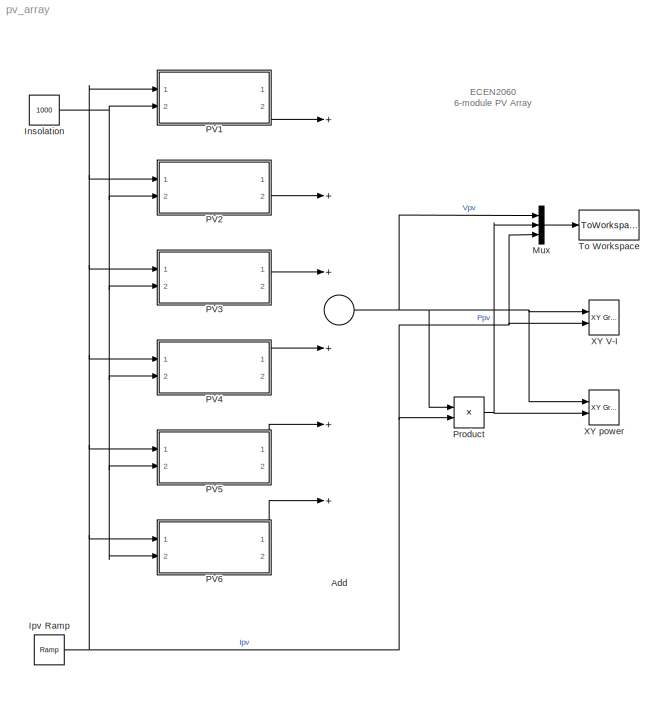
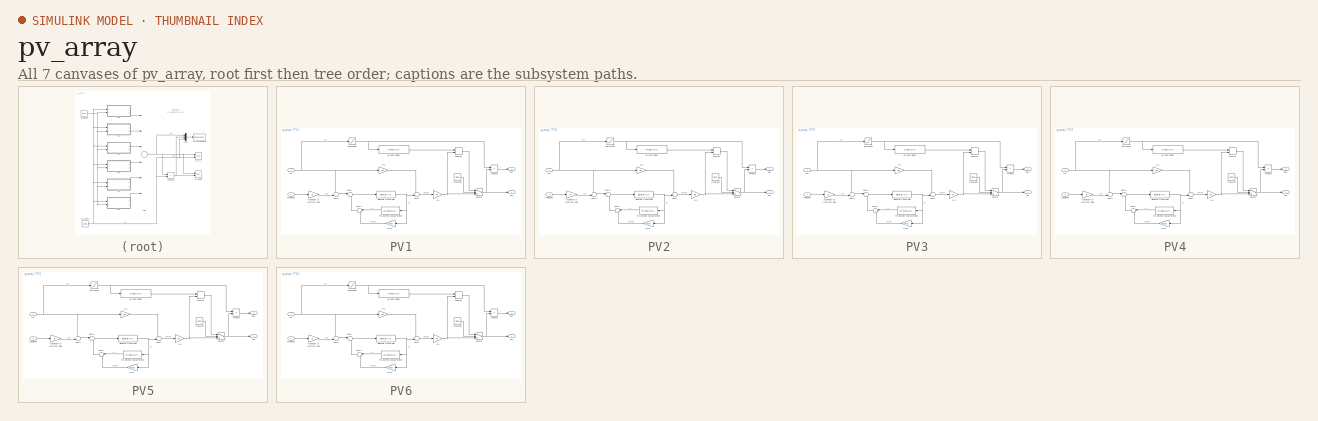
[diagram: thumbnail index - all 7 canvases of the model, root first then tree order]
MODEL pv_array
KIND model
BLOCK [Sum] Add
  InputSameDT = off
  Inputs = ++++++
  OutDataTypeMode = Inherit via internal rule
  OutScaling = 2^-10
  Ports = [6, 1]
  SaturateOnIntegerOverflow = off
BLOCK [Constant] Insolation
  ConRadixGroup = Use specified scaling
  FramePeriod = inf
  OutDataType = sfix(16)
  OutDataTypeMode = Inherit from 'Constant value'
  OutScaling = 2^0
  SampleTime = inf
  SamplingMode = Sample based
  Value = 1000
  VectorParams1D = on
BLOCK [Reference] Ipv Ramp  REF=simulink/Sources/Ramp
  FunctionWithSeparateData = off
  Ports = [0, 1]
  RTWMemSecDataConstants = Inherit from model
  RTWMemSecDataInternal = Inherit from model
  RTWMemSecDataParameters = Inherit from model
  RTWMemSecFuncExecute = Inherit from model
  RTWMemSecFuncInitTerm = Inherit from model
  ShowPortLabels = on
  SourceBlock = simulink/Sources/Ramp
  SourceType = Ramp
  SystemSampleTime = -1
  VectorParams1D = on
  X0 = 0
  slope = 6
  start = 0
BLOCK [Mux] Mux
  DisplayOption = bar
  Inputs = 3
  Ports = [3, 1]
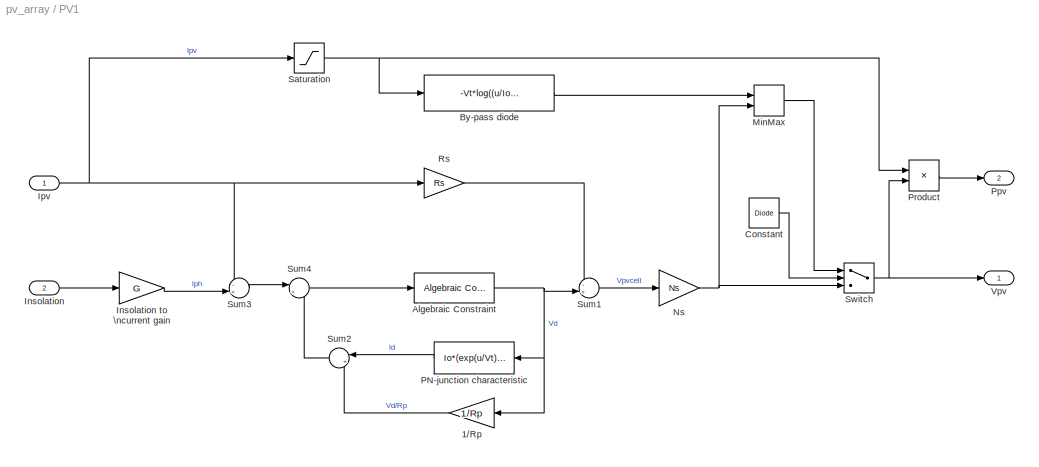
BLOCK [SubSystem] PV1
  FunctionWithSeparateData = off
  MaskCallbackString = ||||
  MaskDescription = PV module model based on module data-sheet parameters. This model has Ipv input, which is suitable for series connections. Limitations: no temperature dependance, static model
  MaskDisplay = plot([0.3 0.4],[0.4 0.8]);\nplot([0.4 0.5],[0.4 0.8]);\nplot([0.5 0.6],[0.4 0.8]);\nplot([0.6 0.7],[0.4 0.8]);\nplot([0.3 0.6],[0.4 0.4]);\nplot([0.325 0.625],[0.5 0.5]);\nplot([0.35 0.65],[0.6 0.6]);\nplot([0.375 0.675],[0.7 0.7]);\nplot([0.4 0.7],[0.8 0.8]);\ntext(0.5,0.9,'PV module (I)','horizontalAlignment', 'center');\n  <repeated x6 — deduplicated; at blocks: PV1, PV2, PV3, PV4, PV5, PV6>
  MaskEnableString = on,on,on,on,on
  MaskHideContents = off
  MaskIconFrame = on
  MaskIconOpaque = off
  MaskIconRotate = none
  MaskIconUnits = normalized
  MaskInitialization = % calculation of PV module parameters\n% limitation: constant temperature\nNs = round(Voc/0.61); % default number of cells in series\nVt = 26e-3; % thermal voltage\nG = Isc/1000; % irradiation to short-circuit current gain\nVmpc = Vr/Ns; % cell voltage at rated Pmax\nVocc = Voc/Ns; % cell open-circuit voltage\nRmpp = Vmpc/Ir; % cell load resistance at Pmax\n%\nRp = 100*Vocc/Isc; % initial value fo...<+575ch>  <repeated x6 — deduplicated; at blocks: PV1, PV2, PV3, PV4, PV5, PV6>
  MaskPromptString = Short-circuit current|Open-circuit voltage|Current at Pmax|Voltage at Pmax|By-pass diode?
  MaskStyleString = edit,edit,edit,edit,checkbox
  MaskTabNameString = ,,,,
  MaskToolTipString = on,on,on,on,on
  MaskTunableValueString = on,on,on,on,on
  MaskValueString = 5.45|22.2|4.95|17.2|on
  MaskVarAliasString = ,,,,
  MaskVariables = Isc=@1;Voc=@2;Ir=@3;Vr=@4;Diode=@5;
  MaskVisibilityString = on,on,on,on,on
  MinAlgLoopOccurrences = off
  Ports = [2, 2]
  RTWSystemCode = Auto
BLOCK [Gain] PV1/1//Rp
  Gain = 1/Rp
  OutDataTypeMode = Inherit via internal rule
  ParameterDataTypeMode = Inherit via internal rule
  SaturateOnIntegerOverflow = off
BLOCK [Reference] PV1/Algebraic Constraint  REF=simulink/Math\nOperations/Algebraic Constraint
  FunctionWithSeparateData = off
  Ports = [1, 1]
  RTWMemSecDataConstants = Inherit from model
  RTWMemSecDataInternal = Inherit from model
  RTWMemSecDataParameters = Inherit from model
  RTWMemSecFuncExecute = Inherit from model
  RTWMemSecFuncInitTerm = Inherit from model
  ShowPortLabels = on
  SourceBlock = simulink/Math\nOperations/Algebraic Constraint
  SourceType = Algebraic Constraint
  SystemSampleTime = -1
  z0 = 0
BLOCK [Fcn] PV1/By-pass diode
  Expr = -Vt*log((u/Io)+1)
BLOCK [Constant] PV1/Constant
  ConRadixGroup = Use specified scaling
  FramePeriod = inf
  OutDataType = sfix(16)
  OutDataTypeMode = Inherit from 'Constant value'
  OutScaling = 2^0
  SampleTime = inf
  SamplingMode = Sample based
  Value = Diode
  VectorParams1D = on
BLOCK [Inport] PV1/Insolation
  IconDisplay = Port number
  Port = 2
BLOCK [Gain] PV1/Insolation to \ncurrent gain
  Gain = G
  OutDataTypeMode = Inherit via internal rule
  ParameterDataTypeMode = Inherit via internal rule
  SaturateOnIntegerOverflow = off
BLOCK [Inport] PV1/Ipv
  IconDisplay = Port number
BLOCK [MinMax] PV1/MinMax
  Function = max
  InputSameDT = off
  Inputs = 2
  Ports = [2, 1]
  SaturateOnIntegerOverflow = off
BLOCK [Gain] PV1/Ns
  Gain = Ns
  OutDataTypeMode = Inherit via internal rule
  ParameterDataTypeMode = Inherit via internal rule
  SaturateOnIntegerOverflow = off
BLOCK [Fcn] PV1/PN-junction characteristic
  Expr = Io*(exp(u/Vt)-1)
BLOCK [Outport] PV1/Ppv
  BusOutputAsStruct = off
  IconDisplay = Port number
  Port = 2
BLOCK [Product] PV1/Product
  InputSameDT = off
  OutDataTypeMode = Inherit via internal rule
  Ports = [2, 1]
  SaturateOnIntegerOverflow = off
BLOCK [Gain] PV1/Rs
  Gain = Rs
  OutDataTypeMode = Inherit via internal rule
  ParameterDataTypeMode = Inherit via internal rule
  SaturateOnIntegerOverflow = off
BLOCK [Saturate] PV1/Saturation
  LowerLimit = 0
  UpperLimit = inf
BLOCK [Sum] PV1/Sum1
  IconShape = round
  InputSameDT = off
  Inputs = -+|
  OutDataTypeMode = Inherit via internal rule
  Ports = [2, 1]
  SaturateOnIntegerOverflow = off
BLOCK [Sum] PV1/Sum2
  IconShape = round
  InputSameDT = off
  Inputs = |++
  OutDataTypeMode = Inherit via internal rule
  Ports = [2, 1]
  SaturateOnIntegerOverflow = off
BLOCK [Sum] PV1/Sum3
  IconShape = round
  InputSameDT = off
  Inputs = -+|
  OutDataTypeMode = Inherit via internal rule
  Ports = [2, 1]
  SaturateOnIntegerOverflow = off
BLOCK [Sum] PV1/Sum4
  IconShape = round
  InputSameDT = off
  Inputs = |+-
  OutDataTypeMode = Inherit via internal rule
  Ports = [2, 1]
  SaturateOnIntegerOverflow = off
BLOCK [Switch] PV1/Switch
  Criteria = u2 > Threshold
  InputSameDT = off
  SaturateOnIntegerOverflow = off
BLOCK [Outport] PV1/Vpv
  BusOutputAsStruct = off
  IconDisplay = Port number
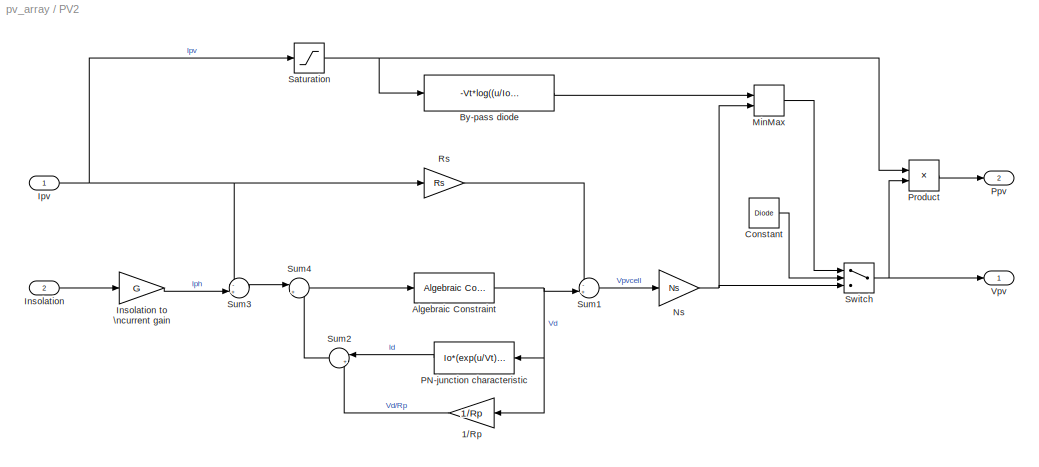
BLOCK [SubSystem] PV2
  FunctionWithSeparateData = off
  MaskCallbackString = ||||
  MaskDescription = PV module model based on module data-sheet parameters. This model has Ipv input, which is suitable for series connections. Limitations: no temperature dependance, static model
  MaskEnableString = on,on,on,on,on
  MaskHideContents = off
  MaskIconFrame = on
  MaskIconOpaque = off
  MaskIconRotate = none
  MaskIconUnits = normalized
  MaskPromptString = Short-circuit current|Open-circuit voltage|Current at Pmax|Voltage at Pmax|By-pass diode?
  MaskStyleString = edit,edit,edit,edit,checkbox
  MaskTabNameString = ,,,,
  MaskToolTipString = on,on,on,on,on
  MaskTunableValueString = on,on,on,on,on
  MaskValueString = 5.45|22.2|4.95|17.2|on
  MaskVarAliasString = ,,,,
  MaskVariables = Isc=@1;Voc=@2;Ir=@3;Vr=@4;Diode=@5;
  MaskVisibilityString = on,on,on,on,on
  MinAlgLoopOccurrences = off
  Ports = [2, 2]
  RTWSystemCode = Auto
BLOCK [Gain] PV2/1//Rp
  Gain = 1/Rp
  OutDataTypeMode = Inherit via internal rule
  ParameterDataTypeMode = Inherit via internal rule
  SaturateOnIntegerOverflow = off
BLOCK [Reference] PV2/Algebraic Constraint  REF=simulink/Math\nOperations/Algebraic Constraint
  FunctionWithSeparateData = off
  Ports = [1, 1]
  RTWMemSecDataConstants = Inherit from model
  RTWMemSecDataInternal = Inherit from model
  RTWMemSecDataParameters = Inherit from model
  RTWMemSecFuncExecute = Inherit from model
  RTWMemSecFuncInitTerm = Inherit from model
  ShowPortLabels = on
  SourceBlock = simulink/Math\nOperations/Algebraic Constraint
  SourceType = Algebraic Constraint
  SystemSampleTime = -1
  z0 = 0
BLOCK [Fcn] PV2/By-pass diode
  Expr = -Vt*log((u/Io)+1)
BLOCK [Constant] PV2/Constant
  ConRadixGroup = Use specified scaling
  FramePeriod = inf
  OutDataType = sfix(16)
  OutDataTypeMode = Inherit from 'Constant value'
  OutScaling = 2^0
  SampleTime = inf
  SamplingMode = Sample based
  Value = Diode
  VectorParams1D = on
BLOCK [Inport] PV2/Insolation
  IconDisplay = Port number
  Port = 2
BLOCK [Gain] PV2/Insolation to \ncurrent gain
  Gain = G
  OutDataTypeMode = Inherit via internal rule
  ParameterDataTypeMode = Inherit via internal rule
  SaturateOnIntegerOverflow = off
BLOCK [Inport] PV2/Ipv
  IconDisplay = Port number
BLOCK [MinMax] PV2/MinMax
  Function = max
  InputSameDT = off
  Inputs = 2
  Ports = [2, 1]
  SaturateOnIntegerOverflow = off
BLOCK [Gain] PV2/Ns
  Gain = Ns
  OutDataTypeMode = Inherit via internal rule
  ParameterDataTypeMode = Inherit via internal rule
  SaturateOnIntegerOverflow = off
BLOCK [Fcn] PV2/PN-junction characteristic
  Expr = Io*(exp(u/Vt)-1)
BLOCK [Outport] PV2/Ppv
  BusOutputAsStruct = off
  IconDisplay = Port number
  Port = 2
BLOCK [Product] PV2/Product
  InputSameDT = off
  OutDataTypeMode = Inherit via internal rule
  Ports = [2, 1]
  SaturateOnIntegerOverflow = off
BLOCK [Gain] PV2/Rs
  Gain = Rs
  OutDataTypeMode = Inherit via internal rule
  ParameterDataTypeMode = Inherit via internal rule
  SaturateOnIntegerOverflow = off
BLOCK [Saturate] PV2/Saturation
  LowerLimit = 0
  UpperLimit = inf
BLOCK [Sum] PV2/Sum1
  IconShape = round
  InputSameDT = off
  Inputs = -+|
  OutDataTypeMode = Inherit via internal rule
  Ports = [2, 1]
  SaturateOnIntegerOverflow = off
BLOCK [Sum] PV2/Sum2
  IconShape = round
  InputSameDT = off
  Inputs = |++
  OutDataTypeMode = Inherit via internal rule
  Ports = [2, 1]
  SaturateOnIntegerOverflow = off
BLOCK [Sum] PV2/Sum3
  IconShape = round
  InputSameDT = off
  Inputs = -+|
  OutDataTypeMode = Inherit via internal rule
  Ports = [2, 1]
  SaturateOnIntegerOverflow = off
BLOCK [Sum] PV2/Sum4
  IconShape = round
  InputSameDT = off
  Inputs = |+-
  OutDataTypeMode = Inherit via internal rule
  Ports = [2, 1]
  SaturateOnIntegerOverflow = off
BLOCK [Switch] PV2/Switch
  Criteria = u2 > Threshold
  InputSameDT = off
  SaturateOnIntegerOverflow = off
BLOCK [Outport] PV2/Vpv
  BusOutputAsStruct = off
  IconDisplay = Port number
BLOCK [SubSystem] PV3
  FunctionWithSeparateData = off
  MaskCallbackString = ||||
  MaskDescription = PV module model based on module data-sheet parameters. This model has Ipv input, which is suitable for series connections. Limitations: no temperature dependance, static model
  MaskEnableString = on,on,on,on,on
  MaskHideContents = off
  MaskIconFrame = on
  MaskIconOpaque = off
  MaskIconRotate = none
  MaskIconUnits = normalized
  MaskPromptString = Short-circuit current|Open-circuit voltage|Current at Pmax|Voltage at Pmax|By-pass diode?
  MaskStyleString = edit,edit,edit,edit,checkbox
  MaskTabNameString = ,,,,
  MaskToolTipString = on,on,on,on,on
  MaskTunableValueString = on,on,on,on,on
  MaskValueString = 5.45|22.2|4.95|17.2|on
  MaskVarAliasString = ,,,,
  MaskVariables = Isc=@1;Voc=@2;Ir=@3;Vr=@4;Diode=@5;
  MaskVisibilityString = on,on,on,on,on
  MinAlgLoopOccurrences = off
  Ports = [2, 2]
  RTWSystemCode = Auto
BLOCK [Gain] PV3/1//Rp
  Gain = 1/Rp
  OutDataTypeMode = Inherit via internal rule
  ParameterDataTypeMode = Inherit via internal rule
  SaturateOnIntegerOverflow = off
BLOCK [Reference] PV3/Algebraic Constraint  REF=simulink/Math\nOperations/Algebraic Constraint
  FunctionWithSeparateData = off
  Ports = [1, 1]
  RTWMemSecDataConstants = Inherit from model
  RTWMemSecDataInternal = Inherit from model
  RTWMemSecDataParameters = Inherit from model
  RTWMemSecFuncExecute = Inherit from model
  RTWMemSecFuncInitTerm = Inherit from model
  ShowPortLabels = on
  SourceBlock = simulink/Math\nOperations/Algebraic Constraint
  SourceType = Algebraic Constraint
  SystemSampleTime = -1
  z0 = 0
BLOCK [Fcn] PV3/By-pass diode
  Expr = -Vt*log((u/Io)+1)
BLOCK [Constant] PV3/Constant
  ConRadixGroup = Use specified scaling
  FramePeriod = inf
  OutDataType = sfix(16)
  OutDataTypeMode = Inherit from 'Constant value'
  OutScaling = 2^0
  SampleTime = inf
  SamplingMode = Sample based
  Value = Diode
  VectorParams1D = on
BLOCK [Inport] PV3/Insolation
  IconDisplay = Port number
  Port = 2
BLOCK [Gain] PV3/Insolation to \ncurrent gain
  Gain = G
  OutDataTypeMode = Inherit via internal rule
  ParameterDataTypeMode = Inherit via internal rule
  SaturateOnIntegerOverflow = off
BLOCK [Inport] PV3/Ipv
  IconDisplay = Port number
BLOCK [MinMax] PV3/MinMax
  Function = max
  InputSameDT = off
  Inputs = 2
  Ports = [2, 1]
  SaturateOnIntegerOverflow = off
BLOCK [Gain] PV3/Ns
  Gain = Ns
  OutDataTypeMode = Inherit via internal rule
  ParameterDataTypeMode = Inherit via internal rule
  SaturateOnIntegerOverflow = off
BLOCK [Fcn] PV3/PN-junction characteristic
  Expr = Io*(exp(u/Vt)-1)
BLOCK [Outport] PV3/Ppv
  BusOutputAsStruct = off
  IconDisplay = Port number
  Port = 2
BLOCK [Product] PV3/Product
  InputSameDT = off
  OutDataTypeMode = Inherit via internal rule
  Ports = [2, 1]
  SaturateOnIntegerOverflow = off
BLOCK [Gain] PV3/Rs
  Gain = Rs
  OutDataTypeMode = Inherit via internal rule
  ParameterDataTypeMode = Inherit via internal rule
  SaturateOnIntegerOverflow = off
BLOCK [Saturate] PV3/Saturation
  LowerLimit = 0
  UpperLimit = inf
BLOCK [Sum] PV3/Sum1
  IconShape = round
  InputSameDT = off
  Inputs = -+|
  OutDataTypeMode = Inherit via internal rule
  Ports = [2, 1]
  SaturateOnIntegerOverflow = off
BLOCK [Sum] PV3/Sum2
  IconShape = round
  InputSameDT = off
  Inputs = |++
  OutDataTypeMode = Inherit via internal rule
  Ports = [2, 1]
  SaturateOnIntegerOverflow = off
BLOCK [Sum] PV3/Sum3
  IconShape = round
  InputSameDT = off
  Inputs = -+|
  OutDataTypeMode = Inherit via internal rule
  Ports = [2, 1]
  SaturateOnIntegerOverflow = off
BLOCK [Sum] PV3/Sum4
  IconShape = round
  InputSameDT = off
  Inputs = |+-
  OutDataTypeMode = Inherit via internal rule
  Ports = [2, 1]
  SaturateOnIntegerOverflow = off
BLOCK [Switch] PV3/Switch
  Criteria = u2 > Threshold
  InputSameDT = off
  SaturateOnIntegerOverflow = off
BLOCK [Outport] PV3/Vpv
  BusOutputAsStruct = off
  IconDisplay = Port number
BLOCK [SubSystem] PV4
  FunctionWithSeparateData = off
  MaskCallbackString = ||||
  MaskDescription = PV module model based on module data-sheet parameters. This model has Ipv input, which is suitable for series connections. Limitations: no temperature dependance, static model
  MaskEnableString = on,on,on,on,on
  MaskHideContents = off
  MaskIconFrame = on
  MaskIconOpaque = off
  MaskIconRotate = none
  MaskIconUnits = normalized
  MaskPromptString = Short-circuit current|Open-circuit voltage|Current at Pmax|Voltage at Pmax|By-pass diode?
  MaskStyleString = edit,edit,edit,edit,checkbox
  MaskTabNameString = ,,,,
  MaskToolTipString = on,on,on,on,on
  MaskTunableValueString = on,on,on,on,on
  MaskValueString = 5.45|22.2|4.95|17.2|on
  MaskVarAliasString = ,,,,
  MaskVariables = Isc=@1;Voc=@2;Ir=@3;Vr=@4;Diode=@5;
  MaskVisibilityString = on,on,on,on,on
  MinAlgLoopOccurrences = off
  Ports = [2, 2]
  RTWSystemCode = Auto
BLOCK [Gain] PV4/1//Rp
  Gain = 1/Rp
  OutDataTypeMode = Inherit via internal rule
  ParameterDataTypeMode = Inherit via internal rule
  SaturateOnIntegerOverflow = off
BLOCK [Reference] PV4/Algebraic Constraint  REF=simulink/Math\nOperations/Algebraic Constraint
  FunctionWithSeparateData = off
  Ports = [1, 1]
  RTWMemSecDataConstants = Inherit from model
  RTWMemSecDataInternal = Inherit from model
  RTWMemSecDataParameters = Inherit from model
  RTWMemSecFuncExecute = Inherit from model
  RTWMemSecFuncInitTerm = Inherit from model
  ShowPortLabels = on
  SourceBlock = simulink/Math\nOperations/Algebraic Constraint
  SourceType = Algebraic Constraint
  SystemSampleTime = -1
  z0 = 0
BLOCK [Fcn] PV4/By-pass diode
  Expr = -Vt*log((u/Io)+1)
BLOCK [Constant] PV4/Constant
  ConRadixGroup = Use specified scaling
  FramePeriod = inf
  OutDataType = sfix(16)
  OutDataTypeMode = Inherit from 'Constant value'
  OutScaling = 2^0
  SampleTime = inf
  SamplingMode = Sample based
  Value = Diode
  VectorParams1D = on
BLOCK [Inport] PV4/Insolation
  IconDisplay = Port number
  Port = 2
BLOCK [Gain] PV4/Insolation to \ncurrent gain
  Gain = G
  OutDataTypeMode = Inherit via internal rule
  ParameterDataTypeMode = Inherit via internal rule
  SaturateOnIntegerOverflow = off
BLOCK [Inport] PV4/Ipv
  IconDisplay = Port number
BLOCK [MinMax] PV4/MinMax
  Function = max
  InputSameDT = off
  Inputs = 2
  Ports = [2, 1]
  SaturateOnIntegerOverflow = off
BLOCK [Gain] PV4/Ns
  Gain = Ns
  OutDataTypeMode = Inherit via internal rule
  ParameterDataTypeMode = Inherit via internal rule
  SaturateOnIntegerOverflow = off
BLOCK [Fcn] PV4/PN-junction characteristic
  Expr = Io*(exp(u/Vt)-1)
BLOCK [Outport] PV4/Ppv
  BusOutputAsStruct = off
  IconDisplay = Port number
  Port = 2
BLOCK [Product] PV4/Product
  InputSameDT = off
  OutDataTypeMode = Inherit via internal rule
  Ports = [2, 1]
  SaturateOnIntegerOverflow = off
BLOCK [Gain] PV4/Rs
  Gain = Rs
  OutDataTypeMode = Inherit via internal rule
  ParameterDataTypeMode = Inherit via internal rule
  SaturateOnIntegerOverflow = off
BLOCK [Saturate] PV4/Saturation
  LowerLimit = 0
  UpperLimit = inf
BLOCK [Sum] PV4/Sum1
  IconShape = round
  InputSameDT = off
  Inputs = -+|
  OutDataTypeMode = Inherit via internal rule
  Ports = [2, 1]
  SaturateOnIntegerOverflow = off
BLOCK [Sum] PV4/Sum2
  IconShape = round
  InputSameDT = off
  Inputs = |++
  OutDataTypeMode = Inherit via internal rule
  Ports = [2, 1]
  SaturateOnIntegerOverflow = off
BLOCK [Sum] PV4/Sum3
  IconShape = round
  InputSameDT = off
  Inputs = -+|
  OutDataTypeMode = Inherit via internal rule
  Ports = [2, 1]
  SaturateOnIntegerOverflow = off
BLOCK [Sum] PV4/Sum4
  IconShape = round
  InputSameDT = off
  Inputs = |+-
  OutDataTypeMode = Inherit via internal rule
  Ports = [2, 1]
  SaturateOnIntegerOverflow = off
BLOCK [Switch] PV4/Switch
  Criteria = u2 > Threshold
  InputSameDT = off
  SaturateOnIntegerOverflow = off
BLOCK [Outport] PV4/Vpv
  BusOutputAsStruct = off
  IconDisplay = Port number
BLOCK [SubSystem] PV5
  FunctionWithSeparateData = off
  MaskCallbackString = ||||
  MaskDescription = PV module model based on module data-sheet parameters. This model has Ipv input, which is suitable for series connections. Limitations: no temperature dependance, static model
  MaskEnableString = on,on,on,on,on
  MaskHideContents = off
  MaskIconFrame = on
  MaskIconOpaque = off
  MaskIconRotate = none
  MaskIconUnits = normalized
  MaskPromptString = Short-circuit current|Open-circuit voltage|Current at Pmax|Voltage at Pmax|By-pass diode?
  MaskStyleString = edit,edit,edit,edit,checkbox
  MaskTabNameString = ,,,,
  MaskToolTipString = on,on,on,on,on
  MaskTunableValueString = on,on,on,on,on
  MaskValueString = 5.45|22.2|4.95|17.2|on
  MaskVarAliasString = ,,,,
  MaskVariables = Isc=@1;Voc=@2;Ir=@3;Vr=@4;Diode=@5;
  MaskVisibilityString = on,on,on,on,on
  MinAlgLoopOccurrences = off
  Ports = [2, 2]
  RTWSystemCode = Auto
BLOCK [Gain] PV5/1//Rp
  Gain = 1/Rp
  OutDataTypeMode = Inherit via internal rule
  ParameterDataTypeMode = Inherit via internal rule
  SaturateOnIntegerOverflow = off
BLOCK [Reference] PV5/Algebraic Constraint  REF=simulink/Math\nOperations/Algebraic Constraint
  FunctionWithSeparateData = off
  Ports = [1, 1]
  RTWMemSecDataConstants = Inherit from model
  RTWMemSecDataInternal = Inherit from model
  RTWMemSecDataParameters = Inherit from model
  RTWMemSecFuncExecute = Inherit from model
  RTWMemSecFuncInitTerm = Inherit from model
  ShowPortLabels = on
  SourceBlock = simulink/Math\nOperations/Algebraic Constraint
  SourceType = Algebraic Constraint
  SystemSampleTime = -1
  z0 = 0
BLOCK [Fcn] PV5/By-pass diode
  Expr = -Vt*log((u/Io)+1)
BLOCK [Constant] PV5/Constant
  ConRadixGroup = Use specified scaling
  FramePeriod = inf
  OutDataType = sfix(16)
  OutDataTypeMode = Inherit from 'Constant value'
  OutScaling = 2^0
  SampleTime = inf
  SamplingMode = Sample based
  Value = Diode
  VectorParams1D = on
BLOCK [Inport] PV5/Insolation
  IconDisplay = Port number
  Port = 2
BLOCK [Gain] PV5/Insolation to \ncurrent gain
  Gain = G
  OutDataTypeMode = Inherit via internal rule
  ParameterDataTypeMode = Inherit via internal rule
  SaturateOnIntegerOverflow = off
BLOCK [Inport] PV5/Ipv
  IconDisplay = Port number
BLOCK [MinMax] PV5/MinMax
  Function = max
  InputSameDT = off
  Inputs = 2
  Ports = [2, 1]
  SaturateOnIntegerOverflow = off
BLOCK [Gain] PV5/Ns
  Gain = Ns
  OutDataTypeMode = Inherit via internal rule
  ParameterDataTypeMode = Inherit via internal rule
  SaturateOnIntegerOverflow = off
BLOCK [Fcn] PV5/PN-junction characteristic
  Expr = Io*(exp(u/Vt)-1)
BLOCK [Outport] PV5/Ppv
  BusOutputAsStruct = off
  IconDisplay = Port number
  Port = 2
BLOCK [Product] PV5/Product
  InputSameDT = off
  OutDataTypeMode = Inherit via internal rule
  Ports = [2, 1]
  SaturateOnIntegerOverflow = off
BLOCK [Gain] PV5/Rs
  Gain = Rs
  OutDataTypeMode = Inherit via internal rule
  ParameterDataTypeMode = Inherit via internal rule
  SaturateOnIntegerOverflow = off
BLOCK [Saturate] PV5/Saturation
  LowerLimit = 0
  UpperLimit = inf
BLOCK [Sum] PV5/Sum1
  IconShape = round
  InputSameDT = off
  Inputs = -+|
  OutDataTypeMode = Inherit via internal rule
  Ports = [2, 1]
  SaturateOnIntegerOverflow = off
BLOCK [Sum] PV5/Sum2
  IconShape = round
  InputSameDT = off
  Inputs = |++
  OutDataTypeMode = Inherit via internal rule
  Ports = [2, 1]
  SaturateOnIntegerOverflow = off
BLOCK [Sum] PV5/Sum3
  IconShape = round
  InputSameDT = off
  Inputs = -+|
  OutDataTypeMode = Inherit via internal rule
  Ports = [2, 1]
  SaturateOnIntegerOverflow = off
BLOCK [Sum] PV5/Sum4
  IconShape = round
  InputSameDT = off
  Inputs = |+-
  OutDataTypeMode = Inherit via internal rule
  Ports = [2, 1]
  SaturateOnIntegerOverflow = off
BLOCK [Switch] PV5/Switch
  Criteria = u2 > Threshold
  InputSameDT = off
  SaturateOnIntegerOverflow = off
BLOCK [Outport] PV5/Vpv
  BusOutputAsStruct = off
  IconDisplay = Port number
BLOCK [SubSystem] PV6
  FunctionWithSeparateData = off
  MaskCallbackString = ||||
  MaskDescription = PV module model based on module data-sheet parameters. This model has Ipv input, which is suitable for series connections. Limitations: no temperature dependance, static model
  MaskEnableString = on,on,on,on,on
  MaskHideContents = off
  MaskIconFrame = on
  MaskIconOpaque = off
  MaskIconRotate = none
  MaskIconUnits = normalized
  MaskPromptString = Short-circuit current|Open-circuit voltage|Current at Pmax|Voltage at Pmax|By-pass diode?
  MaskStyleString = edit,edit,edit,edit,checkbox
  MaskTabNameString = ,,,,
  MaskToolTipString = on,on,on,on,on
  MaskTunableValueString = on,on,on,on,on
  MaskValueString = 5.45|22.2|4.95|17.2|on
  MaskVarAliasString = ,,,,
  MaskVariables = Isc=@1;Voc=@2;Ir=@3;Vr=@4;Diode=@5;
  MaskVisibilityString = on,on,on,on,on
  MinAlgLoopOccurrences = off
  Ports = [2, 2]
  RTWSystemCode = Auto
BLOCK [Gain] PV6/1//Rp
  Gain = 1/Rp
  OutDataTypeMode = Inherit via internal rule
  ParameterDataTypeMode = Inherit via internal rule
  SaturateOnIntegerOverflow = off
BLOCK [Reference] PV6/Algebraic Constraint  REF=simulink/Math\nOperations/Algebraic Constraint
  FunctionWithSeparateData = off
  Ports = [1, 1]
  RTWMemSecDataConstants = Inherit from model
  RTWMemSecDataInternal = Inherit from model
  RTWMemSecDataParameters = Inherit from model
  RTWMemSecFuncExecute = Inherit from model
  RTWMemSecFuncInitTerm = Inherit from model
  ShowPortLabels = on
  SourceBlock = simulink/Math\nOperations/Algebraic Constraint
  SourceType = Algebraic Constraint
  SystemSampleTime = -1
  z0 = 0
BLOCK [Fcn] PV6/By-pass diode
  Expr = -Vt*log((u/Io)+1)
BLOCK [Constant] PV6/Constant
  ConRadixGroup = Use specified scaling
  FramePeriod = inf
  OutDataType = sfix(16)
  OutDataTypeMode = Inherit from 'Constant value'
  OutScaling = 2^0
  SampleTime = inf
  SamplingMode = Sample based
  Value = Diode
  VectorParams1D = on
BLOCK [Inport] PV6/Insolation
  IconDisplay = Port number
  Port = 2
BLOCK [Gain] PV6/Insolation to \ncurrent gain
  Gain = G
  OutDataTypeMode = Inherit via internal rule
  ParameterDataTypeMode = Inherit via internal rule
  SaturateOnIntegerOverflow = off
BLOCK [Inport] PV6/Ipv
  IconDisplay = Port number
BLOCK [MinMax] PV6/MinMax
  Function = max
  InputSameDT = off
  Inputs = 2
  Ports = [2, 1]
  SaturateOnIntegerOverflow = off
BLOCK [Gain] PV6/Ns
  Gain = Ns
  OutDataTypeMode = Inherit via internal rule
  ParameterDataTypeMode = Inherit via internal rule
  SaturateOnIntegerOverflow = off
BLOCK [Fcn] PV6/PN-junction characteristic
  Expr = Io*(exp(u/Vt)-1)
BLOCK [Outport] PV6/Ppv
  BusOutputAsStruct = off
  IconDisplay = Port number
  Port = 2
BLOCK [Product] PV6/Product
  InputSameDT = off
  OutDataTypeMode = Inherit via internal rule
  Ports = [2, 1]
  SaturateOnIntegerOverflow = off
BLOCK [Gain] PV6/Rs
  Gain = Rs
  OutDataTypeMode = Inherit via internal rule
  ParameterDataTypeMode = Inherit via internal rule
  SaturateOnIntegerOverflow = off
BLOCK [Saturate] PV6/Saturation
  LowerLimit = 0
  UpperLimit = inf
BLOCK [Sum] PV6/Sum1
  IconShape = round
  InputSameDT = off
  Inputs = -+|
  OutDataTypeMode = Inherit via internal rule
  Ports = [2, 1]
  SaturateOnIntegerOverflow = off
BLOCK [Sum] PV6/Sum2
  IconShape = round
  InputSameDT = off
  Inputs = |++
  OutDataTypeMode = Inherit via internal rule
  Ports = [2, 1]
  SaturateOnIntegerOverflow = off
BLOCK [Sum] PV6/Sum3
  IconShape = round
  InputSameDT = off
  Inputs = -+|
  OutDataTypeMode = Inherit via internal rule
  Ports = [2, 1]
  SaturateOnIntegerOverflow = off
BLOCK [Sum] PV6/Sum4
  IconShape = round
  InputSameDT = off
  Inputs = |+-
  OutDataTypeMode = Inherit via internal rule
  Ports = [2, 1]
  SaturateOnIntegerOverflow = off
BLOCK [Switch] PV6/Switch
  Criteria = u2 > Threshold
  InputSameDT = off
  SaturateOnIntegerOverflow = off
BLOCK [Outport] PV6/Vpv
  BusOutputAsStruct = off
  IconDisplay = Port number
BLOCK [Product] Product
  InputSameDT = off
  OutDataTypeMode = Inherit via internal rule
  Ports = [2, 1]
  SaturateOnIntegerOverflow = off
BLOCK [ToWorkspace] To Workspace
  MaxDataPoints = inf
  SampleTime = -1
  SaveFormat = Structure With Time
  VariableName = PV
BLOCK [Reference] XY V-I  REF=simulink/Sinks/XY Graph
  FunctionWithSeparateData = off
  Ports = [2]
  RTWMemSecDataConstants = Inherit from model
  RTWMemSecDataInternal = Inherit from model
  RTWMemSecDataParameters = Inherit from model
  RTWMemSecFuncExecute = Inherit from model
  RTWMemSecFuncInitTerm = Inherit from model
  ShowPortLabels = on
  SourceBlock = simulink/Sinks/XY Graph
  SourceType = XY scope.
  SystemSampleTime = -1
  st = -1
  xmax = 150
  xmin = 0
  ymax = 6
  ymin = 0
BLOCK [Reference] XY power  REF=simulink/Sinks/XY Graph
  FunctionWithSeparateData = off
  Ports = [2]
  RTWMemSecDataConstants = Inherit from model
  RTWMemSecDataInternal = Inherit from model
  RTWMemSecDataParameters = Inherit from model
  RTWMemSecFuncExecute = Inherit from model
  RTWMemSecFuncInitTerm = Inherit from model
  ShowPortLabels = on
  SourceBlock = simulink/Sinks/XY Graph
  SourceType = XY scope.
  SystemSampleTime = -1
  st = -1
  xmax = 150
  xmin = 0
  ymax = 600
  ymin = 0
ANNOTATION (root): ECEN2060\n6-module PV Array
NET Add:1 -> Mux:1, Product:1, XY V-I:1, XY power:1
NET Insolation:1 -> PV1:2, PV2:2, PV3:2, PV4:2, PV5:2, PV6:2
NET Ipv Ramp:1 -> Mux:3, PV1:1, PV2:1, PV3:1, PV4:1, PV5:1, PV6:1, Product:2, XY V-I:2
LINE Mux:1 -> To Workspace:1
LINE PV1/1//Rp:1 -> PV1/Sum2:2
NET PV1/Algebraic Constraint:1 -> PV1/1//Rp:1, PV1/PN-junction characteristic:1, PV1/Sum1:2
LINE PV1/By-pass diode:1 -> PV1/MinMax:1
LINE PV1/Constant:1 -> PV1/Switch:2
LINE PV1/Insolation to \ncurrent gain:1 -> PV1/Sum3:2
LINE PV1/Insolation:1 -> PV1/Insolation to \ncurrent gain:1
NET PV1/Ipv:1 -> PV1/Rs:1, PV1/Saturation:1, PV1/Sum3:1
LINE PV1/MinMax:1 -> PV1/Switch:1
NET PV1/Ns:1 -> PV1/MinMax:2, PV1/Switch:3
LINE PV1/PN-junction characteristic:1 -> PV1/Sum2:1
LINE PV1/Product:1 -> PV1/Ppv:1
LINE PV1/Rs:1 -> PV1/Sum1:1
NET PV1/Saturation:1 -> PV1/By-pass diode:1, PV1/Product:1
LINE PV1/Sum1:1 -> PV1/Ns:1
LINE PV1/Sum2:1 -> PV1/Sum4:2
LINE PV1/Sum3:1 -> PV1/Sum4:1
LINE PV1/Sum4:1 -> PV1/Algebraic Constraint:1
NET PV1/Switch:1 -> PV1/Product:2, PV1/Vpv:1
LINE PV1:1 -> Add:1
LINE PV2/1//Rp:1 -> PV2/Sum2:2
NET PV2/Algebraic Constraint:1 -> PV2/1//Rp:1, PV2/PN-junction characteristic:1, PV2/Sum1:2
LINE PV2/By-pass diode:1 -> PV2/MinMax:1
LINE PV2/Constant:1 -> PV2/Switch:2
LINE PV2/Insolation to \ncurrent gain:1 -> PV2/Sum3:2
LINE PV2/Insolation:1 -> PV2/Insolation to \ncurrent gain:1
NET PV2/Ipv:1 -> PV2/Rs:1, PV2/Saturation:1, PV2/Sum3:1
LINE PV2/MinMax:1 -> PV2/Switch:1
NET PV2/Ns:1 -> PV2/MinMax:2, PV2/Switch:3
LINE PV2/PN-junction characteristic:1 -> PV2/Sum2:1
LINE PV2/Product:1 -> PV2/Ppv:1
LINE PV2/Rs:1 -> PV2/Sum1:1
NET PV2/Saturation:1 -> PV2/By-pass diode:1, PV2/Product:1
LINE PV2/Sum1:1 -> PV2/Ns:1
LINE PV2/Sum2:1 -> PV2/Sum4:2
LINE PV2/Sum3:1 -> PV2/Sum4:1
LINE PV2/Sum4:1 -> PV2/Algebraic Constraint:1
NET PV2/Switch:1 -> PV2/Product:2, PV2/Vpv:1
LINE PV2:1 -> Add:2
LINE PV3/1//Rp:1 -> PV3/Sum2:2
NET PV3/Algebraic Constraint:1 -> PV3/1//Rp:1, PV3/PN-junction characteristic:1, PV3/Sum1:2
LINE PV3/By-pass diode:1 -> PV3/MinMax:1
LINE PV3/Constant:1 -> PV3/Switch:2
LINE PV3/Insolation to \ncurrent gain:1 -> PV3/Sum3:2
LINE PV3/Insolation:1 -> PV3/Insolation to \ncurrent gain:1
NET PV3/Ipv:1 -> PV3/Rs:1, PV3/Saturation:1, PV3/Sum3:1
LINE PV3/MinMax:1 -> PV3/Switch:1
NET PV3/Ns:1 -> PV3/MinMax:2, PV3/Switch:3
LINE PV3/PN-junction characteristic:1 -> PV3/Sum2:1
LINE PV3/Product:1 -> PV3/Ppv:1
LINE PV3/Rs:1 -> PV3/Sum1:1
NET PV3/Saturation:1 -> PV3/By-pass diode:1, PV3/Product:1
LINE PV3/Sum1:1 -> PV3/Ns:1
LINE PV3/Sum2:1 -> PV3/Sum4:2
LINE PV3/Sum3:1 -> PV3/Sum4:1
LINE PV3/Sum4:1 -> PV3/Algebraic Constraint:1
NET PV3/Switch:1 -> PV3/Product:2, PV3/Vpv:1
LINE PV3:1 -> Add:3
LINE PV4/1//Rp:1 -> PV4/Sum2:2
NET PV4/Algebraic Constraint:1 -> PV4/1//Rp:1, PV4/PN-junction characteristic:1, PV4/Sum1:2
LINE PV4/By-pass diode:1 -> PV4/MinMax:1
LINE PV4/Constant:1 -> PV4/Switch:2
LINE PV4/Insolation to \ncurrent gain:1 -> PV4/Sum3:2
LINE PV4/Insolation:1 -> PV4/Insolation to \ncurrent gain:1
NET PV4/Ipv:1 -> PV4/Rs:1, PV4/Saturation:1, PV4/Sum3:1
LINE PV4/MinMax:1 -> PV4/Switch:1
NET PV4/Ns:1 -> PV4/MinMax:2, PV4/Switch:3
LINE PV4/PN-junction characteristic:1 -> PV4/Sum2:1
LINE PV4/Product:1 -> PV4/Ppv:1
LINE PV4/Rs:1 -> PV4/Sum1:1
NET PV4/Saturation:1 -> PV4/By-pass diode:1, PV4/Product:1
LINE PV4/Sum1:1 -> PV4/Ns:1
LINE PV4/Sum2:1 -> PV4/Sum4:2
LINE PV4/Sum3:1 -> PV4/Sum4:1
LINE PV4/Sum4:1 -> PV4/Algebraic Constraint:1
NET PV4/Switch:1 -> PV4/Product:2, PV4/Vpv:1
LINE PV4:1 -> Add:4
LINE PV5/1//Rp:1 -> PV5/Sum2:2
NET PV5/Algebraic Constraint:1 -> PV5/1//Rp:1, PV5/PN-junction characteristic:1, PV5/Sum1:2
LINE PV5/By-pass diode:1 -> PV5/MinMax:1
LINE PV5/Constant:1 -> PV5/Switch:2
LINE PV5/Insolation to \ncurrent gain:1 -> PV5/Sum3:2
LINE PV5/Insolation:1 -> PV5/Insolation to \ncurrent gain:1
NET PV5/Ipv:1 -> PV5/Rs:1, PV5/Saturation:1, PV5/Sum3:1
LINE PV5/MinMax:1 -> PV5/Switch:1
NET PV5/Ns:1 -> PV5/MinMax:2, PV5/Switch:3
LINE PV5/PN-junction characteristic:1 -> PV5/Sum2:1
LINE PV5/Product:1 -> PV5/Ppv:1
LINE PV5/Rs:1 -> PV5/Sum1:1
NET PV5/Saturation:1 -> PV5/By-pass diode:1, PV5/Product:1
LINE PV5/Sum1:1 -> PV5/Ns:1
LINE PV5/Sum2:1 -> PV5/Sum4:2
LINE PV5/Sum3:1 -> PV5/Sum4:1
LINE PV5/Sum4:1 -> PV5/Algebraic Constraint:1
NET PV5/Switch:1 -> PV5/Product:2, PV5/Vpv:1
LINE PV5:1 -> Add:5
LINE PV6/1//Rp:1 -> PV6/Sum2:2
NET PV6/Algebraic Constraint:1 -> PV6/1//Rp:1, PV6/PN-junction characteristic:1, PV6/Sum1:2
LINE PV6/By-pass diode:1 -> PV6/MinMax:1
LINE PV6/Constant:1 -> PV6/Switch:2
LINE PV6/Insolation to \ncurrent gain:1 -> PV6/Sum3:2
LINE PV6/Insolation:1 -> PV6/Insolation to \ncurrent gain:1
NET PV6/Ipv:1 -> PV6/Rs:1, PV6/Saturation:1, PV6/Sum3:1
LINE PV6/MinMax:1 -> PV6/Switch:1
NET PV6/Ns:1 -> PV6/MinMax:2, PV6/Switch:3
LINE PV6/PN-junction characteristic:1 -> PV6/Sum2:1
LINE PV6/Product:1 -> PV6/Ppv:1
LINE PV6/Rs:1 -> PV6/Sum1:1
NET PV6/Saturation:1 -> PV6/By-pass diode:1, PV6/Product:1
LINE PV6/Sum1:1 -> PV6/Ns:1
LINE PV6/Sum2:1 -> PV6/Sum4:2
LINE PV6/Sum3:1 -> PV6/Sum4:1
LINE PV6/Sum4:1 -> PV6/Algebraic Constraint:1
NET PV6/Switch:1 -> PV6/Product:2, PV6/Vpv:1
LINE PV6:1 -> Add:6
NET Product:1 -> Mux:2, XY power:2
note: NET lines group one-source signal fan-out (src -> all destinations, sorted); 1:1 wires keep LINE
